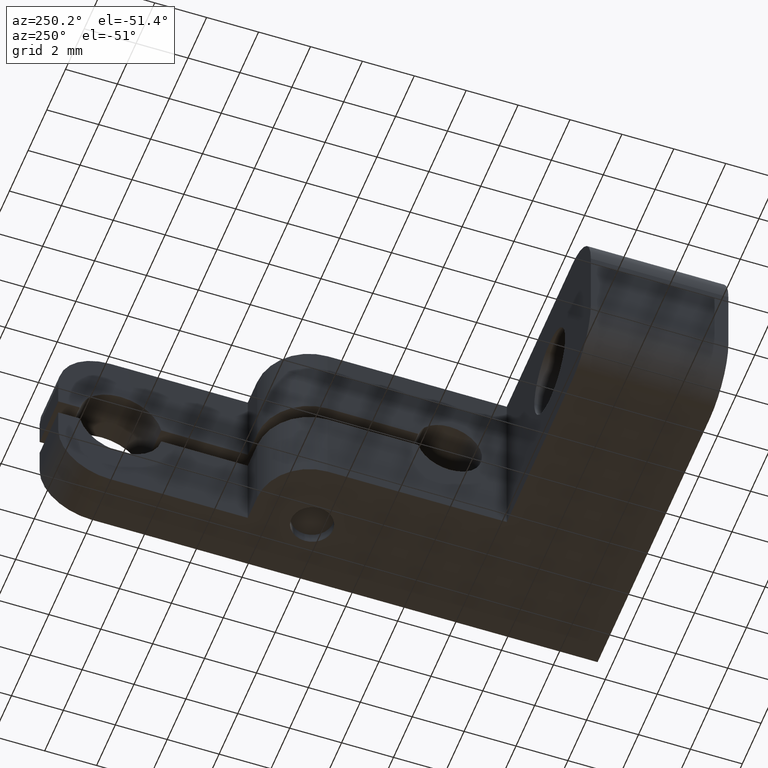
[diagram: clean part render]
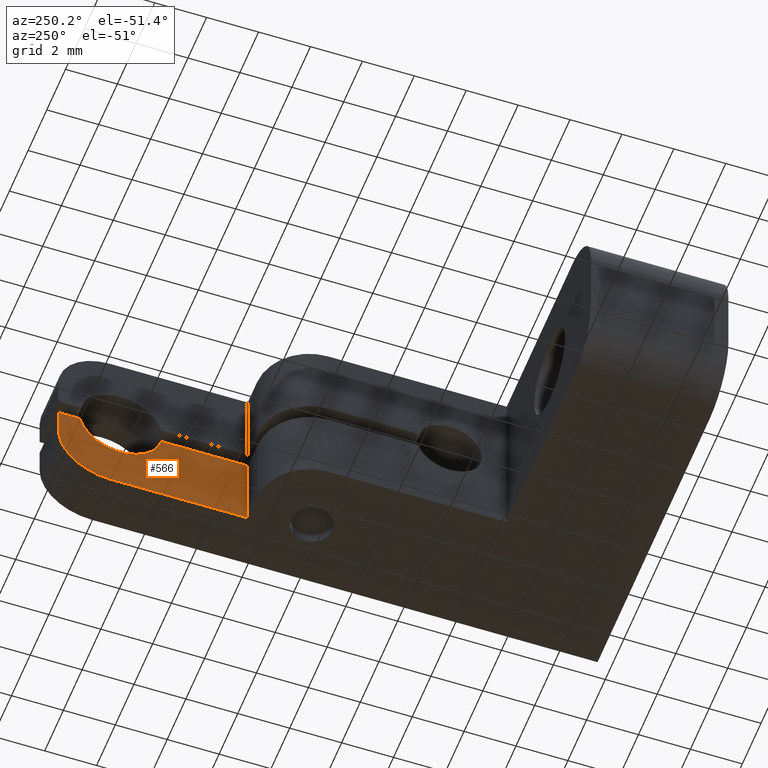
[diagram: same view with one face highlighted and labeled with its STEP entity id]
A machine part, auxiliary view. The second image highlights one B-rep face of the part: STEP entity #566.
In plain terms, the highlighted planar face has unit normal (1, 0, 0).
Its self-contained STEP definition (entity closure, byte-faithful):
#4 = ORIENTED_EDGE ( 'NONE', *, *, #1268, .F. ) ;
#9 = AXIS2_PLACEMENT_3D ( 'NONE', #1998, #1290, #1335 ) ;
#29 = DIRECTION ( 'NONE',  ( 0.000000000000000000, 1.000000000000000000, 8.881784197001250351E-16 ) ) ;
#42 = VECTOR ( 'NONE', #1176, 1000.000000000000000 ) ;
#145 = VERTEX_POINT ( 'NONE', #2024 ) ;
#168 = VERTEX_POINT ( 'NONE', #209 ) ;
#204 = DIRECTION ( 'NONE',  ( -1.000000000000000000, -1.188166764367676342E-16, 0.000000000000000000 ) ) ;
#209 = CARTESIAN_POINT ( 'NONE',  ( -2.000000000000000000, 20.66767343538123569, -0.3199999999999996736 ) ) ;
#225 = CARTESIAN_POINT ( 'NONE',  ( -2.000000000000000000, 21.50000000000000000, -1.350000000000000089 ) ) ;
#292 = CIRCLE ( 'NONE', #849, 1.600000000000000755 ) ;
#294 = ORIENTED_EDGE ( 'NONE', *, *, #1133, .T. ) ;
#398 = VECTOR ( 'NONE', #1679, 1000.000000000000000 ) ;
#403 = PLANE ( 'NONE',  #1252 ) ;
#492 = VERTEX_POINT ( 'NONE', #1026 ) ;
#534 = VERTEX_POINT ( 'NONE', #225 ) ;
#553 = FACE_OUTER_BOUND ( 'NONE', #1261, .T. ) ;
#566 = ADVANCED_FACE ( 'NONE', ( #553 ), #403, .F. ) ;
#641 = VECTOR ( 'NONE', #786, 1000.000000000000000 ) ;
#704 = VERTEX_POINT ( 'NONE', #2127 ) ;
#736 = CIRCLE ( 'NONE', #9, 2.000000000000001776 ) ;
#786 = DIRECTION ( 'NONE',  ( -0.000000000000000000, -0.000000000000000000, -1.000000000000000000 ) ) ;
#793 = ORIENTED_EDGE ( 'NONE', *, *, #1246, .F. ) ;
#816 = CARTESIAN_POINT ( 'NONE',  ( -1.999999999999999112, 14.19999999999999929, 3.350000000000000089 ) ) ;
#833 = VERTEX_POINT ( 'NONE', #1409 ) ;
#849 = AXIS2_PLACEMENT_3D ( 'NONE', #1539, #204, #29 ) ;
#881 = CARTESIAN_POINT ( 'NONE',  ( -2.000000000000000000, 21.50000000000000000, 3.350000000000000089 ) ) ;
#957 = DIRECTION ( 'NONE',  ( -0.000000000000000000, -0.000000000000000000, -1.000000000000000000 ) ) ;
#962 = LINE ( 'NONE', #998, #398 ) ;
#998 = CARTESIAN_POINT ( 'NONE',  ( -2.000000000000000000, 21.50000000000000000, -3.350000000000000089 ) ) ;
#1017 = ORIENTED_EDGE ( 'NONE', *, *, #1069, .T. ) ;
#1026 = CARTESIAN_POINT ( 'NONE',  ( -1.999999999999998224, 14.19999999999999929, -0.3200000000000005063 ) ) ;
#1044 = EDGE_CURVE ( 'NONE', #2048, #704, #962, .T. ) ;
#1069 = EDGE_CURVE ( 'NONE', #145, #534, #1154, .T. ) ;
#1133 = EDGE_CURVE ( 'NONE', #534, #2048, #736, .T. ) ;
#1154 = LINE ( 'NONE', #1848, #641 ) ;
#1176 = DIRECTION ( 'NONE',  ( 1.188166764367676342E-16, -1.000000000000000000, -1.356136956839420341E-16 ) ) ;
#1203 = VECTOR ( 'NONE', #957, 1000.000000000000000 ) ;
#1246 = EDGE_CURVE ( 'NONE', #833, #492, #1307, .T. ) ;
#1252 = AXIS2_PLACEMENT_3D ( 'NONE', #881, #2036, #1740 ) ;
#1261 = EDGE_LOOP ( 'NONE', ( #1017, #294, #1587, #1708, #793, #4, #1627 ) ) ;
#1268 = EDGE_CURVE ( 'NONE', #168, #833, #292, .T. ) ;
#1290 = DIRECTION ( 'NONE',  ( -1.000000000000000000, -1.188166764367676342E-16, 0.000000000000000000 ) ) ;
#1307 = LINE ( 'NONE', #2140, #1881 ) ;
#1335 = DIRECTION ( 'NONE',  ( -2.168404344971006896E-16, 1.000000000000000000, 0.000000000000000000 ) ) ;
#1392 = EDGE_CURVE ( 'NONE', #145, #168, #1675, .T. ) ;
#1409 = CARTESIAN_POINT ( 'NONE',  ( -2.000000000000005329, 17.53232656461877070, -0.3199999999999999512 ) ) ;
#1517 = CARTESIAN_POINT ( 'NONE',  ( -1.999999999999999556, 19.49999999999999645, -3.350000000000000089 ) ) ;
#1539 = CARTESIAN_POINT ( 'NONE',  ( -2.000000000000000000, 19.10000000000000142, -4.336808689942017736E-16 ) ) ;
#1587 = ORIENTED_EDGE ( 'NONE', *, *, #1044, .T. ) ;
#1627 = ORIENTED_EDGE ( 'NONE', *, *, #1392, .F. ) ;
#1675 = LINE ( 'NONE', #2180, #42 ) ;
#1679 = DIRECTION ( 'NONE',  ( 1.188166764367676342E-16, -1.000000000000000000, 0.000000000000000000 ) ) ;
#1705 = EDGE_CURVE ( 'NONE', #492, #704, #2163, .T. ) ;
#1708 = ORIENTED_EDGE ( 'NONE', *, *, #1705, .F. ) ;
#1740 = DIRECTION ( 'NONE',  ( -1.188166764367676342E-16, 1.000000000000000000, 0.000000000000000000 ) ) ;
#1848 = CARTESIAN_POINT ( 'NONE',  ( -2.000000000000000000, 21.50000000000000000, 3.350000000000000089 ) ) ;
#1881 = VECTOR ( 'NONE', #1983, 1000.000000000000000 ) ;
#1983 = DIRECTION ( 'NONE',  ( 1.188166764367676342E-16, -1.000000000000000000, -1.356136956839420341E-16 ) ) ;
#1998 = CARTESIAN_POINT ( 'NONE',  ( -1.999999999999999556, 19.49999999999999645, -1.350000000000000089 ) ) ;
#2024 = CARTESIAN_POINT ( 'NONE',  ( -2.000000000000003553, 21.50000000000000000, -0.3199999999999995626 ) ) ;
#2036 = DIRECTION ( 'NONE',  ( 1.000000000000000000, 1.188166764367676342E-16, -0.000000000000000000 ) ) ;
#2048 = VERTEX_POINT ( 'NONE', #1517 ) ;
#2127 = CARTESIAN_POINT ( 'NONE',  ( -1.999999999999999112, 14.19999999999999929, -3.350000000000000089 ) ) ;
#2140 = CARTESIAN_POINT ( 'NONE',  ( -2.000000000000000000, 21.50000000000000000, -0.3199999999999995626 ) ) ;
#2163 = LINE ( 'NONE', #816, #1203 ) ;
#2180 = CARTESIAN_POINT ( 'NONE',  ( -2.000000000000000000, 21.50000000000000000, -0.3199999999999995626 ) ) ;